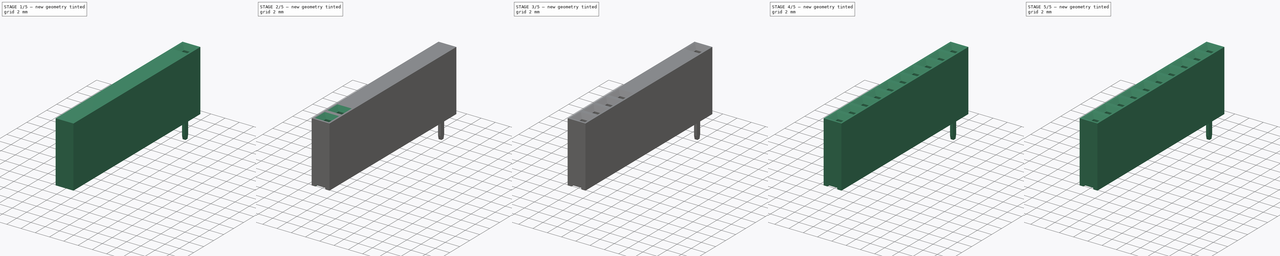
[diagram: build sequence overview — one tinted view per stage of 5, left to right]
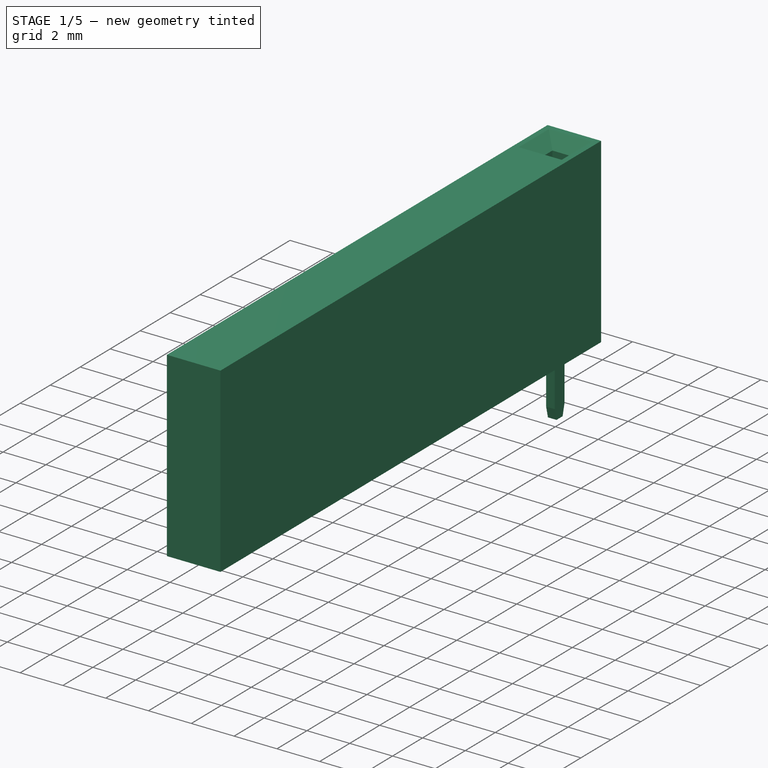
[diagram: stage 1 of 5 — iso view after this stage's code; geometry added in this stage tinted green]
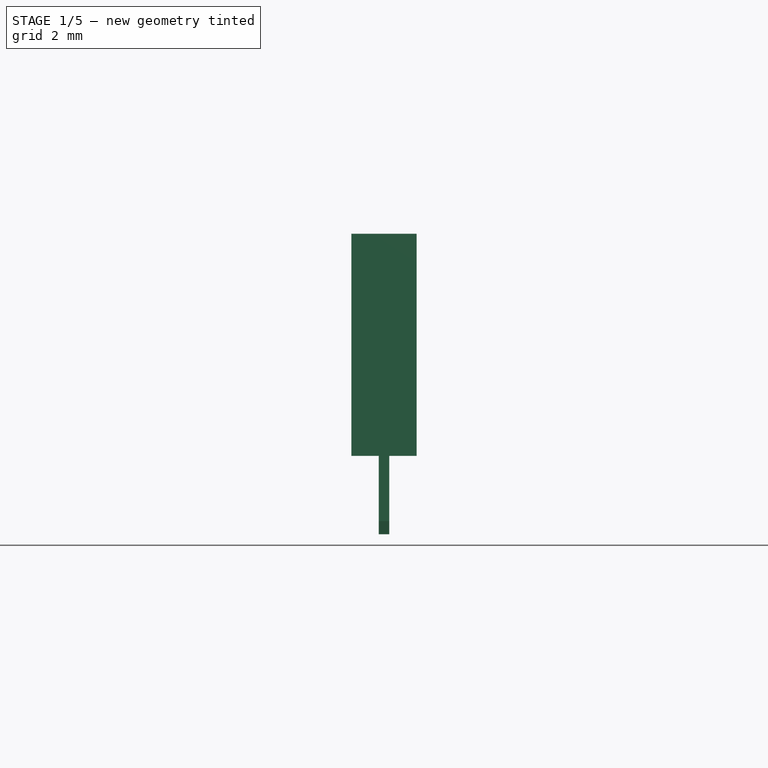
[diagram: stage 1 of 5 — front view after this stage's code; geometry added in this stage tinted green]
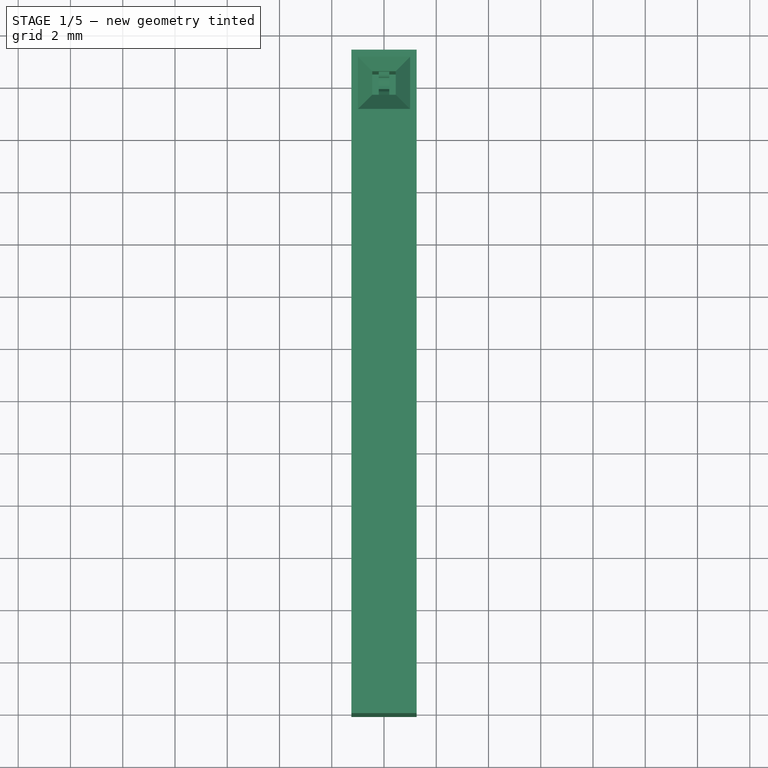
[diagram: stage 1 of 5 — top view after this stage's code; geometry added in this stage tinted green]
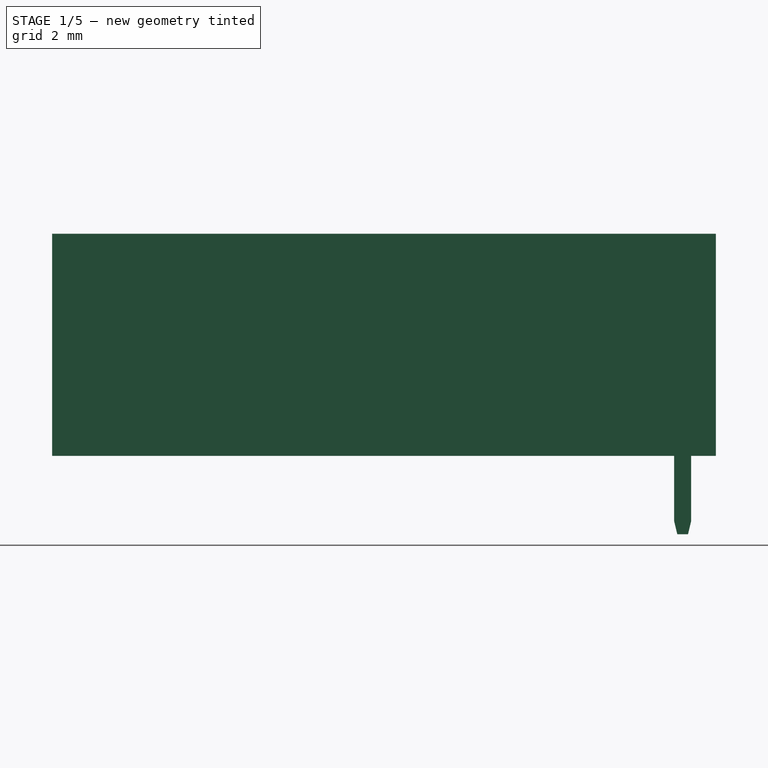
[diagram: stage 1 of 5 — right view after this stage's code; geometry added in this stage tinted green]
FCSTD DOCUMENT  (FreeCAD 0.20R29603 (Git))
Label: Female_Header_1Row_P2.54_H8.5_straight
License: All rights reserved
LicenseURL: http://en.wikipedia.org/wiki/All_rights_reserved
objects: PartDesign::Body×27, PartDesign::FeatureBase×21, Sketcher::SketchObject×18, PartDesign::Pocket×9, PartDesign::Pad×6, PartDesign::SubtractiveLoft×3, PartDesign::Mirrored×3, PartDesign::LinearPattern×3, App::Part×3, Image::ImagePlane×1
note: 108 computed .brp shape members not serialized (recipe doc carries the construction recipe); baked Part::Feature solids carry a one-line shape summary decoded from their .brp

FEATURE [PartDesign::Body] Body002  label="Epoxy_Body"
  Group = -> [Sketch002,Sketch003,Sketch004,Pad,SubtractiveLoft,Sketch008,Pocket,Pocket001,Sketch009,LinearPattern,Pocket006]
  Origin = -> Origin003
  Tip = -> Pocket006
FEATURE [App::Part] Part  label="Female_Header_1x8_P2.54_H8.5_straight"
  Group = -> [Body001,Body002,Body003,Body004,Body005,Body006,Body007,Body008,Body009]
  Origin = -> Origin
FEATURE [Sketcher::SketchObject] Sketch020
  FullyConstrained = true
  MapMode = 5
  Placement = pos=(0,0,0) rot=(0.57735,0.57735,0.57735;2.0944rad)
  Support = -> [YZ_Plane021]
  sketch-geometry (14):
    g0: LineSegment StartX=0 StartY=8.5 StartZ=0 EndX=0 EndY=-8.5 EndZ=0
    g1: ArcOfCircle CenterX=0 CenterY=1.9 CenterZ=0 NormalX=0 NormalY=0 NormalZ=1 AngleXU=0 Radius=0.5 StartAngle=4.71239 EndAngle=6.34078
    g2: LineSegment StartX=0.499171 StartY=1.92878 StartZ=0 EndX=0.219948 EndY=6.77139 EndZ=0
    g3: ArcOfCircle CenterX=0.569367 CenterY=6.79154 CenterZ=0 NormalX=0 NormalY=0 NormalZ=1 AngleXU=0 Radius=0.35 StartAngle=2.26893 EndAngle=3.19919
    g4: LineSegment StartX=0.344392 StartY=7.05965 StartZ=0 EndX=0.75 EndY=7.4 EndZ=0
    g5: LineSegment StartX=0.75 StartY=7.4 StartZ=0 EndX=0.9 EndY=1.9 EndZ=0
    g6: ArcOfCircle CenterX=0.8 CenterY=1.72679 CenterZ=0 NormalX=0 NormalY=0 NormalZ=1 AngleXU=0 Radius=0.2 StartAngle=0 EndAngle=1.0472
    g7: LineSegment StartX=-1e-16 StartY=1.4 StartZ=0 EndX=0 EndY=-3 EndZ=0
    g8: LineSegment StartX=0 StartY=-3 StartZ=0 EndX=0.204961 EndY=-3 EndZ=0
    g9: LineSegment StartX=0.204961 StartY=-3 StartZ=0 EndX=0.325 EndY=-2.5 EndZ=0
    g10: LineSegment StartX=0.325 StartY=-2.5 StartZ=0 EndX=0.325 EndY=0.4 EndZ=0
    g11: LineSegment StartX=0.525 StartY=0.6 StartZ=0 EndX=1 EndY=0.6 EndZ=0
    g12: LineSegment StartX=1 StartY=1.72679 StartZ=0 EndX=1 EndY=0.6 EndZ=0
    g13: ArcOfCircle CenterX=0.525 CenterY=0.4 CenterZ=0 NormalX=0 NormalY=0 NormalZ=1 AngleXU=0 Radius=0.2 StartAngle=1.5708 EndAngle=3.14159
  constraints (40):
    c: PointOnObject(g1,g0)
    c: PointOnObject(g1,g0)
    c: Coincident(g5,g4)
    c: Tangent(g2,g1) = -1.5708
    c: Tangent(g3,g2) = 1.5708
    c: Tangent(g4,g3) = 1.5708
    c: Coincident(g5,g6)
    c: Coincident(g7,g1)
    c: PointOnObject(g7,g0)
    c: Coincident(g8,g7)
    c: Horizontal(g8)
    c: Coincident(g9,g8)
    c: Coincident(g10,g9)
    c: Vertical(g10)
    c: Horizontal(g11)
    c: Coincident(g12,g11)
    c: Vertical(g12)
    c: Tangent(g12,g6) = 1.5708
    c: Tangent(g13,g11) = 1.5708
    c: Tangent(g13,g10) = 1.5708
    c: DistanceX(g7,g9) = 0.325
    c: Angle(g9,g7) = 0.235619
    c: DistanceY(g8,g9) = 0.5
    c: DistanceY(g7) = -3
    c: Radius(g13) = 0.2
    c: Radius(g6) = 0.2
    c: DistanceX(g7,g11) = 1
    c: DistanceY(g8,g4) = 10.4
    c: DistanceY(g7,g7) = 4.4
    c: Radius(g1) = 0.5
    c: DistanceX(g0,g4) = 0.75
    c: DistanceY(g8,g5) = 4.9
    c: DistanceY(g8,g11) = 3.6
    c: Angle(g0,g2) = 0.0575959
    c: Angle(g0,g4) = 2.26893
    c: DistanceX(g5,g11) = 0.1
    c: Radius(g3) = 0.35
    c: DistanceY(g0,g0) = 17
    c: Symmetric(g0,g0,g-1)
    c: PointOnObject(g0,g-2)
FEATURE [PartDesign::Pad] Pad005
  Direction = (1,-2e-16,3e-16)
  Length = 0.4
  Length2 = 10
  Midplane = true
  Placement = pos=(0,0,0) rot=(0.57735,0.57735,0.57735;2.0944rad)
  Profile = -> Sketch020
  ReferenceAxis = -> Sketch020 [N_Axis]
  Type = 0
FEATURE [PartDesign::Mirrored] Mirrored002
  BaseFeature = -> Pad005
  MirrorPlane = -> Sketch020 [V_Axis]
  Originals = -> [Pad005]
  Placement = pos=(0,0,0) rot=(0.57735,0.57735,0.57735;2.0944rad)
  Refine = true
FEATURE [PartDesign::Body] Body024
  BaseFeature = -> Body018
  Group = -> [Clone016]
  Origin = -> Origin027
  Placement = pos=(0,-12.7,0) rot=(0,0,1;0rad)
  Tip = -> Clone016
FEATURE [Sketcher::SketchObject] Sketch021
  FullyConstrained = true
  MapMode = 5
  Support = -> [XY_Plane022]
  sketch-geometry (4):
    g0: LineSegment StartX=-1.25 StartY=1.27 StartZ=0 EndX=1.25 EndY=1.27 EndZ=0
    g1: LineSegment StartX=1.25 StartY=1.27 StartZ=0 EndX=1.25 EndY=-24.13 EndZ=0
    g2: LineSegment StartX=1.25 StartY=-24.13 StartZ=0 EndX=-1.25 EndY=-24.13 EndZ=0
    g3: LineSegment StartX=-1.25 StartY=-24.13 StartZ=0 EndX=-1.25 EndY=1.27 EndZ=0
  constraints (11):
    c: Coincident(g0,g1)
    c: Coincident(g1,g2)
    c: Coincident(g2,g3)
    c: Coincident(g3,g0)
    c: Horizontal(g2)
    c: Vertical(g1)
    c: Vertical(g3)
    c: DistanceY(g3,g3) = 25.4
    c: DistanceX(g0,g0) = 2.5
    c: DistanceY(g-1,g0) = 1.27
    c: Symmetric(g0,g0,g-2)
FEATURE [PartDesign::Pad] Pad004
  Direction = (0,0,1)
  Length = 8.5
  Length2 = 10
  Profile = -> Sketch021
  ReferenceAxis = -> Sketch021 [N_Axis]
  Type = 0
FEATURE [Sketcher::SketchObject] Sketch022
  AttachmentOffset = pos=(0,0,8.5) rot=(0,0,1;0rad)
  FullyConstrained = true
  MapMode = 5
  Placement = pos=(0,0,8.5) rot=(0,0,1;0rad)
  Support = -> [XY_Plane022]
  sketch-geometry (4):
    g0: LineSegment StartX=-1 StartY=1 StartZ=0 EndX=1 EndY=1 EndZ=0
    g1: LineSegment StartX=1 StartY=1 StartZ=0 EndX=1 EndY=-1 EndZ=0
    g2: LineSegment StartX=1 StartY=-1 StartZ=0 EndX=-1 EndY=-1 EndZ=0
    g3: LineSegment StartX=-1 StartY=-1 StartZ=0 EndX=-1 EndY=1 EndZ=0
  constraints (10):
    c: Coincident(g0,g1)
    c: Coincident(g1,g2)
    c: Coincident(g2,g3)
    c: Coincident(g3,g0)
    c: Horizontal(g0)
    c: Vertical(g1)
    c: Symmetric(g0,g2,g-1)
    c: DistanceX(g0,g0) = 2
    c: DistanceY(g3,g3) = 2
    c: Symmetric(g0,g1,g-1)
FEATURE [Sketcher::SketchObject] Sketch023
  AttachmentOffset = pos=(0,0,7.95) rot=(0,0,1;0rad)
  FullyConstrained = true
  MapMode = 5
  Placement = pos=(0,0,7.95) rot=(0,0,1;0rad)
  Support = -> [XY_Plane022]
  sketch-geometry (4):
    g0: LineSegment StartX=-0.45 StartY=0.45 StartZ=0 EndX=0.45 EndY=0.45 EndZ=0
    g1: LineSegment StartX=0.45 StartY=0.45 StartZ=0 EndX=0.45 EndY=-0.45 EndZ=0
    g2: LineSegment StartX=0.45 StartY=-0.45 StartZ=0 EndX=-0.45 EndY=-0.45 EndZ=0
    g3: LineSegment StartX=-0.45 StartY=-0.45 StartZ=0 EndX=-0.45 EndY=0.45 EndZ=0
  constraints (10):
    c: Coincident(g0,g1)
    c: Coincident(g1,g2)
    c: Coincident(g2,g3)
    c: Coincident(g3,g0)
    c: Horizontal(g0)
    c: Vertical(g1)
    c: Symmetric(g0,g2,g-1)
    c: DistanceX(g0,g0) = 0.9
    c: DistanceY(g3,g3) = 0.9
    c: Symmetric(g0,g1,g-1)
FEATURE [Sketcher::SketchObject] Sketch024
  FullyConstrained = true
  MapMode = 5
  Placement = pos=(0,0,0) rot=(0.57735,0.57735,0.57735;2.0944rad)
  Support = -> [YZ_Plane022]
  sketch-geometry (4):
    g0: LineSegment StartX=-1 StartY=7.6 StartZ=0 EndX=-1 EndY=0 EndZ=0
    g1: LineSegment StartX=-1 StartY=0 StartZ=0 EndX=1 EndY=0 EndZ=0
    g2: LineSegment StartX=1 StartY=0 StartZ=0 EndX=1 EndY=7.6 EndZ=0
    g3: LineSegment StartX=1 StartY=7.6 StartZ=0 EndX=-1 EndY=7.6 EndZ=0
  constraints (11):
    c: Coincident(g3,g0)
    c: Coincident(g0,g1)
    c: Coincident(g1,g2)
    c: Horizontal(g1)
    c: Vertical(g0)
    c: Vertical(g2)
    c: Symmetric(g2,g3,g-2)
    c: PointOnObject(g1,g-1)
    c: Coincident(g3,g2)
    c: DistanceY(g0,g0) = 7.6
    c: DistanceX(g3,g3) = 2
FEATURE [Sketcher::SketchObject] Sketch025
  AttachmentOffset = pos=(0,0,-1.27) rot=(0,0,1;0rad)
  FullyConstrained = true
  MapMode = 5
  Placement = pos=(0,1.27,3e-16) rot=(1,0,0;1.5708rad)
  Support = -> [XZ_Plane022]
  sketch-geometry (10):
    g0: LineSegment StartX=-1.25 StartY=0 StartZ=0 EndX=-0.75 EndY=0 EndZ=0
    g1: LineSegment StartX=1.25 StartY=0 StartZ=0 EndX=1.25 EndY=-0.5 EndZ=0
    g2: LineSegment StartX=1.25 StartY=-0.5 StartZ=0 EndX=-1.25 EndY=-0.5 EndZ=0
    g3: LineSegment StartX=-1.25 StartY=-0.5 StartZ=0 EndX=-1.25 EndY=0 EndZ=0
    g4: ArcOfCircle CenterX=-0.75 CenterY=0.1 CenterZ=0 NormalX=0 NormalY=0 NormalZ=1 AngleXU=0 Radius=0.1 StartAngle=4.71239 EndAngle=6.28319
    g5: ArcOfCircle CenterX=0.75 CenterY=0.1 CenterZ=0 NormalX=0 NormalY=0 NormalZ=1 AngleXU=0 Radius=0.1 StartAngle=3.14159 EndAngle=4.71239
    g6: LineSegment StartX=0.75 StartY=0 StartZ=0 EndX=1.25 EndY=0 EndZ=0
    g7: LineSegment StartX=0.65 StartY=0.1 StartZ=0 EndX=0.65 EndY=0.2 EndZ=0
    g8: LineSegment StartX=0.65 StartY=0.2 StartZ=0 EndX=-0.65 EndY=0.2 EndZ=0
    g9: LineSegment StartX=-0.65 StartY=0.2 StartZ=0 EndX=-0.65 EndY=0.1 EndZ=0
  constraints (26):
    c: Coincident(g6,g1)
    c: Coincident(g1,g2)
    c: Coincident(g2,g3)
    c: Coincident(g3,g0)
    c: Horizontal(g0)
    c: Vertical(g1)
    c: Vertical(g3)
    c: PointOnObject(g0,g-1)
    c: Tangent(g6,g5) = -1.5708
    c: Horizontal(g6)
    c: PointOnObject(g1,g-1)
    c: Coincident(g7,g8)
    c: Coincident(g8,g9)
    c: Vertical(g7)
    c: Vertical(g9)
    c: Tangent(g5,g7) = 1.5708
    c: Symmetric(g8,g7,g-2)
    c: Tangent(g9,g4) = 1.5708
    c: Equal(g4,g5)
    c: Radius(g4) = 0.1
    c: DistanceY(g1,g7) = 0.2
    c: DistanceX(g8,g8) = 1.3
    c: DistanceX(g2,g2) = 2.5
    c: Symmetric(g2,g1,g-2)
    c: DistanceY(g1,g7) = 0.7
    c: Tangent(g4,g0) = -1.5708
FEATURE [PartDesign::SubtractiveLoft] SubtractiveLoft002
  BaseFeature = -> Pad004
  Closed = false
  Profile = -> Sketch022
  Ruled = false
  Sections = -> [Sketch023]
FEATURE [PartDesign::Pocket] Pocket007
  BaseFeature = -> SubtractiveLoft002
  Direction = (0,0,-1)
  Length = 7
  Length2 = 5
  Profile = -> Sketch023
  ReferenceAxis = -> Sketch023 [N_Axis]
  Type = 0
FEATURE [PartDesign::Body] Body019  label="Epoxy_Body002"
  Group = -> [Sketch021,Sketch022,Sketch023,Pad004,SubtractiveLoft002,Sketch024,Pocket007,Pocket008,LinearPattern002,Sketch025,Pocket009]
  Origin = -> Origin022
  Tip = -> Pocket009
FEATURE [PartDesign::FeatureBase] Clone024
  BaseFeature = -> Body018
FEATURE [PartDesign::Body] Body034
  BaseFeature = -> Body018
  Group = -> [Clone024]
  Origin = -> Origin056
  Placement = pos=(0,-15.24,0) rot=(0,0,1;0rad)
  Tip = -> Clone024
FEATURE [PartDesign::FeatureBase] Clone025
  BaseFeature = -> Body018
FEATURE [PartDesign::Body] Body035
  BaseFeature = -> Body018
  Group = -> [Clone025]
  Origin = -> Origin057
  Placement = pos=(0,-17.78,0) rot=(0,0,1;0rad)
  Tip = -> Clone025
FEATURE [PartDesign::FeatureBase] Clone026
  BaseFeature = -> Body018
FEATURE [PartDesign::Body] Body036
  BaseFeature = -> Body018
  Group = -> [Clone026]
  Origin = -> Origin058
  Placement = pos=(0,-20.32,0) rot=(0,0,1;0rad)
  Tip = -> Clone026
FEATURE [PartDesign::FeatureBase] Clone027
  BaseFeature = -> Body018
FEATURE [PartDesign::Body] Body037
  BaseFeature = -> Body018
  Group = -> [Clone027]
  Origin = -> Origin059
  Placement = pos=(0,-22.86,0) rot=(0,0,1;0rad)
  Tip = -> Clone027
FEATURE [App::Part] Part002  label="Female_Header_1x10_P2.54_H8.5_straight"
  Group = -> [Body018,Body019,Body020,Body021,Body022,Body023,Body024,Body034,Body035,Body036,Body037]
  Origin = -> Origin020
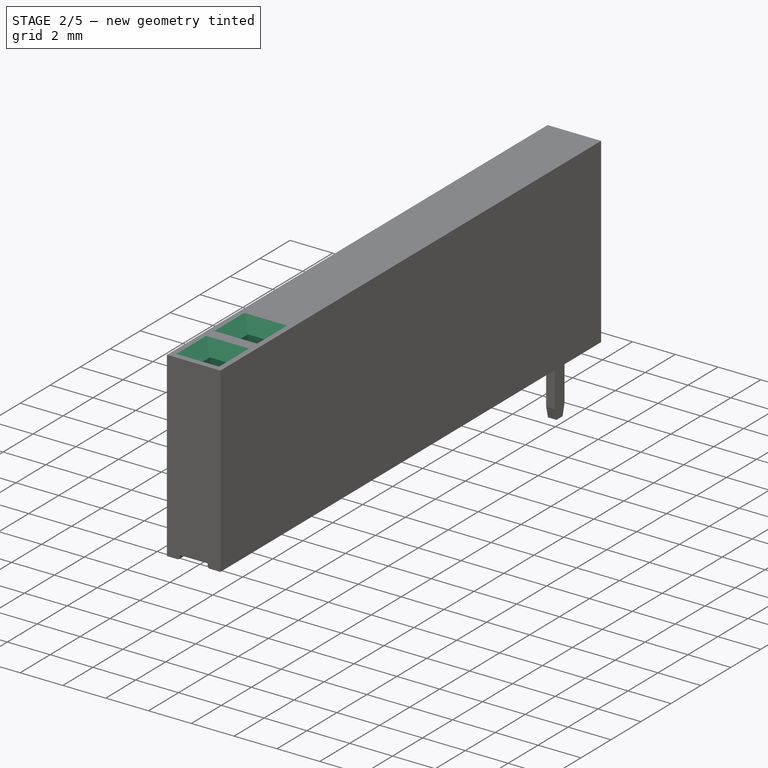
[diagram: stage 2 of 5 — iso view after this stage's code; geometry added in this stage tinted green]
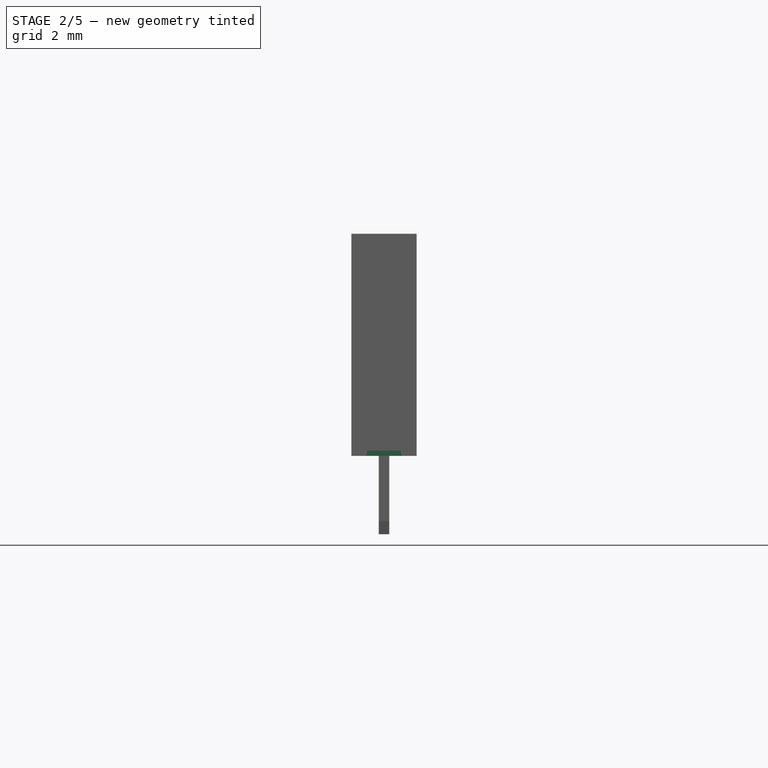
[diagram: stage 2 of 5 — front view after this stage's code; geometry added in this stage tinted green]
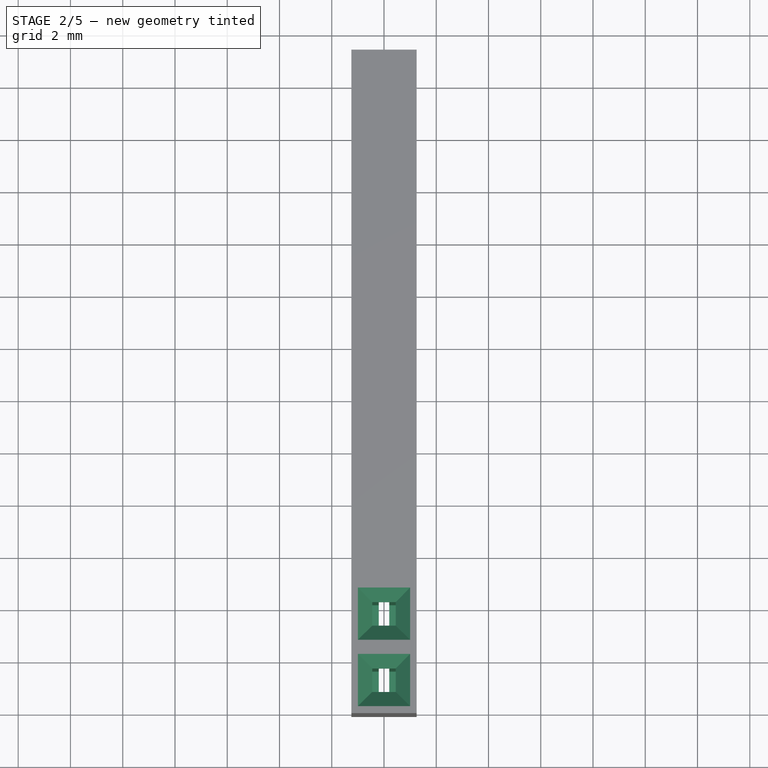
[diagram: stage 2 of 5 — top view after this stage's code; geometry added in this stage tinted green]
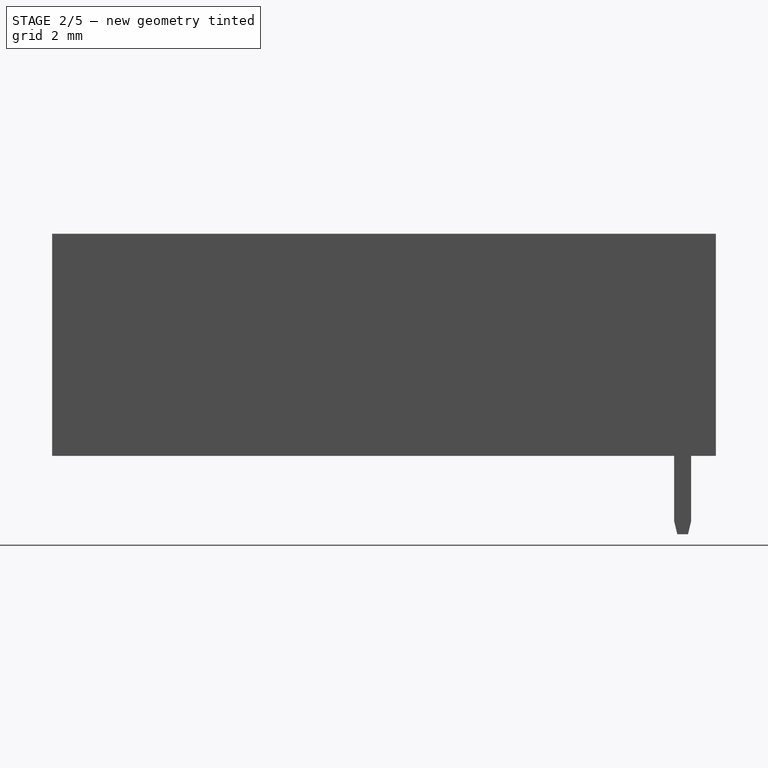
[diagram: stage 2 of 5 — right view after this stage's code; geometry added in this stage tinted green]
FEATURE [Image::ImagePlane] ImagePlane  label="Scondar FH254H850"
  Placement = pos=(0.02,3.34,2.3) rot=(-0.57735,-0.57735,-0.57735;4.18879rad)
  XSize = 101.33
  YSize = 71.6356
FEATURE [Sketcher::SketchObject] Sketch001
  FullyConstrained = true
  MapMode = 5
  Placement = pos=(0,0,0) rot=(0.57735,0.57735,0.57735;2.0944rad)
  Support = -> [YZ_Plane002]
  sketch-geometry (14):
    g0: LineSegment StartX=0 StartY=8.5 StartZ=0 EndX=0 EndY=-8.5 EndZ=0
    g1: ArcOfCircle CenterX=0 CenterY=1.9 CenterZ=0 NormalX=0 NormalY=0 NormalZ=1 AngleXU=0 Radius=0.5 StartAngle=4.71239 EndAngle=6.34078
    g2: LineSegment StartX=0.499171 StartY=1.92878 StartZ=0 EndX=0.219948 EndY=6.77139 EndZ=0
    g3: ArcOfCircle CenterX=0.569367 CenterY=6.79154 CenterZ=0 NormalX=0 NormalY=0 NormalZ=1 AngleXU=0 Radius=0.35 StartAngle=2.26893 EndAngle=3.19919
    g4: LineSegment StartX=0.344392 StartY=7.05965 StartZ=0 EndX=0.75 EndY=7.4 EndZ=0
    g5: LineSegment StartX=0.75 StartY=7.4 StartZ=0 EndX=0.9 EndY=1.9 EndZ=0
    g6: ArcOfCircle CenterX=0.8 CenterY=1.72679 CenterZ=0 NormalX=0 NormalY=0 NormalZ=1 AngleXU=0 Radius=0.2 StartAngle=0 EndAngle=1.0472
    g7: LineSegment StartX=-1e-16 StartY=1.4 StartZ=0 EndX=0 EndY=-3 EndZ=0
    g8: LineSegment StartX=0 StartY=-3 StartZ=0 EndX=0.204961 EndY=-3 EndZ=0
    g9: LineSegment StartX=0.204961 StartY=-3 StartZ=0 EndX=0.325 EndY=-2.5 EndZ=0
    g10: LineSegment StartX=0.325 StartY=-2.5 StartZ=0 EndX=0.325 EndY=0.4 EndZ=0
    g11: LineSegment StartX=0.525 StartY=0.6 StartZ=0 EndX=1 EndY=0.6 EndZ=0
    g12: LineSegment StartX=1 StartY=1.72679 StartZ=0 EndX=1 EndY=0.6 EndZ=0
    g13: ArcOfCircle CenterX=0.525 CenterY=0.4 CenterZ=0 NormalX=0 NormalY=0 NormalZ=1 AngleXU=0 Radius=0.2 StartAngle=1.5708 EndAngle=3.14159
  constraints (40):
    c: PointOnObject(g1,g0)
    c: PointOnObject(g1,g0)
    c: Coincident(g5,g4)
    c: Tangent(g2,g1) = -1.5708
    c: Tangent(g3,g2) = 1.5708
    c: Tangent(g4,g3) = 1.5708
    c: Coincident(g5,g6)
    c: Coincident(g7,g1)
    c: PointOnObject(g7,g0)
    c: Coincident(g8,g7)
    c: Horizontal(g8)
    c: Coincident(g9,g8)
    c: Coincident(g10,g9)
    c: Vertical(g10)
    c: Horizontal(g11)
    c: Coincident(g12,g11)
    c: Vertical(g12)
    c: Tangent(g12,g6) = 1.5708
    c: Tangent(g13,g11) = 1.5708
    c: Tangent(g13,g10) = 1.5708
    c: DistanceX(g7,g9) = 0.325
    c: Angle(g9,g7) = 0.235619
    c: DistanceY(g8,g9) = 0.5
    c: DistanceY(g7) = -3
    c: Radius(g13) = 0.2
    c: Radius(g6) = 0.2
    c: DistanceX(g7,g11) = 1
    c: DistanceY(g8,g4) = 10.4
    c: DistanceY(g7,g7) = 4.4
    c: Radius(g1) = 0.5
    c: DistanceX(g0,g4) = 0.75
    c: DistanceY(g8,g5) = 4.9
    c: DistanceY(g8,g11) = 3.6
    c: Angle(g0,g2) = 0.0575959
    c: Angle(g0,g4) = 2.26893
    c: DistanceX(g5,g11) = 0.1
    c: Radius(g3) = 0.35
    c: DistanceY(g0,g0) = 17
    c: Symmetric(g0,g0,g-1)
    c: PointOnObject(g0,g-2)
FEATURE [Sketcher::SketchObject] Sketch002
  FullyConstrained = true
  MapMode = 5
  Support = -> [XY_Plane003]
  sketch-geometry (4):
    g0: LineSegment StartX=-1.25 StartY=1.27 StartZ=0 EndX=1.25 EndY=1.27 EndZ=0
    g1: LineSegment StartX=1.25 StartY=1.27 StartZ=0 EndX=1.25 EndY=-19.05 EndZ=0
    g2: LineSegment StartX=1.25 StartY=-19.05 StartZ=0 EndX=-1.25 EndY=-19.05 EndZ=0
    g3: LineSegment StartX=-1.25 StartY=-19.05 StartZ=0 EndX=-1.25 EndY=1.27 EndZ=0
  constraints (11):
    c: Coincident(g0,g1)
    c: Coincident(g1,g2)
    c: Coincident(g2,g3)
    c: Coincident(g3,g0)
    c: Horizontal(g2)
    c: Vertical(g1)
    c: Vertical(g3)
    c: DistanceY(g3,g3) = 20.32
    c: DistanceX(g0,g0) = 2.5
    c: Symmetric(g0,g0,g-2)
    c: DistanceY(g-1,g0) = 1.27
FEATURE [Sketcher::SketchObject] Sketch003
  AttachmentOffset = pos=(0,0,8.5) rot=(0,0,1;0rad)
  FullyConstrained = true
  MapMode = 5
  Placement = pos=(0,0,8.5) rot=(0,0,1;0rad)
  Support = -> [XY_Plane003]
  sketch-geometry (4):
    g0: LineSegment StartX=-1 StartY=1 StartZ=0 EndX=1 EndY=1 EndZ=0
    g1: LineSegment StartX=1 StartY=1 StartZ=0 EndX=1 EndY=-1 EndZ=0
    g2: LineSegment StartX=1 StartY=-1 StartZ=0 EndX=-1 EndY=-1 EndZ=0
    g3: LineSegment StartX=-1 StartY=-1 StartZ=0 EndX=-1 EndY=1 EndZ=0
  constraints (10):
    c: Coincident(g0,g1)
    c: Coincident(g1,g2)
    c: Coincident(g2,g3)
    c: Coincident(g3,g0)
    c: Horizontal(g0)
    c: Vertical(g1)
    c: Symmetric(g0,g2,g-1)
    c: DistanceX(g0,g0) = 2
    c: DistanceY(g3,g3) = 2
    c: Symmetric(g0,g1,g-1)
FEATURE [Sketcher::SketchObject] Sketch004
  AttachmentOffset = pos=(0,0,7.95) rot=(0,0,1;0rad)
  FullyConstrained = true
  MapMode = 5
  Placement = pos=(0,0,7.95) rot=(0,0,1;0rad)
  Support = -> [XY_Plane003]
  sketch-geometry (4):
    g0: LineSegment StartX=-0.45 StartY=0.45 StartZ=0 EndX=0.45 EndY=0.45 EndZ=0
    g1: LineSegment StartX=0.45 StartY=0.45 StartZ=0 EndX=0.45 EndY=-0.45 EndZ=0
    g2: LineSegment StartX=0.45 StartY=-0.45 StartZ=0 EndX=-0.45 EndY=-0.45 EndZ=0
    g3: LineSegment StartX=-0.45 StartY=-0.45 StartZ=0 EndX=-0.45 EndY=0.45 EndZ=0
  constraints (10):
    c: Coincident(g0,g1)
    c: Coincident(g1,g2)
    c: Coincident(g2,g3)
    c: Coincident(g3,g0)
    c: Horizontal(g0)
    c: Vertical(g1)
    c: Symmetric(g0,g2,g-1)
    c: DistanceX(g0,g0) = 0.9
    c: DistanceY(g3,g3) = 0.9
    c: Symmetric(g0,g1,g-1)
FEATURE [PartDesign::Pad] Pad
  Direction = (0,0,1)
  Length = 8.5
  Length2 = 10
  Profile = -> Sketch002
  ReferenceAxis = -> Sketch002 [N_Axis]
  Type = 0
FEATURE [PartDesign::Body] Body018  label="Pin_One002"
  Group = -> [Sketch020,Pad005,Mirrored002]
  Origin = -> Origin021
  Tip = -> Mirrored002
FEATURE [PartDesign::FeatureBase] Clone012
  BaseFeature = -> Body018
FEATURE [PartDesign::Body] Body020
  BaseFeature = -> Body018
  Group = -> [Clone012]
  Origin = -> Origin023
  Placement = pos=(0,-2.54,0) rot=(0,0,1;0rad)
  Tip = -> Clone012
FEATURE [PartDesign::FeatureBase] Clone013
  BaseFeature = -> Body018
FEATURE [PartDesign::Body] Body021
  BaseFeature = -> Body018
  Group = -> [Clone013]
  Origin = -> Origin024
  Placement = pos=(0,-5.08,0) rot=(0,0,1;0rad)
  Tip = -> Clone013
FEATURE [PartDesign::FeatureBase] Clone014
  BaseFeature = -> Body018
FEATURE [PartDesign::Body] Body022
  BaseFeature = -> Body018
  Group = -> [Clone014]
  Origin = -> Origin025
  Placement = pos=(0,-7.62,0) rot=(0,0,1;0rad)
  Tip = -> Clone014
FEATURE [PartDesign::FeatureBase] Clone015
  BaseFeature = -> Body018
FEATURE [PartDesign::Body] Body023
  BaseFeature = -> Body018
  Group = -> [Clone015]
  Origin = -> Origin026
  Placement = pos=(0,-10.16,0) rot=(0,0,1;0rad)
  Tip = -> Clone015
FEATURE [PartDesign::FeatureBase] Clone016
  BaseFeature = -> Body018
FEATURE [PartDesign::Pocket] Pocket008
  BaseFeature = -> Pocket007
  Direction = (-1,2e-16,-3e-16)
  Length = 0.4
  Length2 = 5
  Midplane = true
  Profile = -> Sketch024
  ReferenceAxis = -> Sketch024 [N_Axis]
  Type = 0
FEATURE [PartDesign::LinearPattern] LinearPattern002
  BaseFeature = -> Pocket008
  Direction = -> Sketch022 [V_Axis]
  Length = 22.86
  Occurrences = 10
  Originals = -> [SubtractiveLoft002,Pocket007,Pocket008]
  Reversed = true
FEATURE [PartDesign::Pocket] Pocket009
  BaseFeature = -> LinearPattern002
  Direction = (0,1,2e-16)
  Length = 5
  Length2 = 5
  Profile = -> Sketch025
  ReferenceAxis = -> Sketch025 [N_Axis]
  Reversed = true
  Type = 1
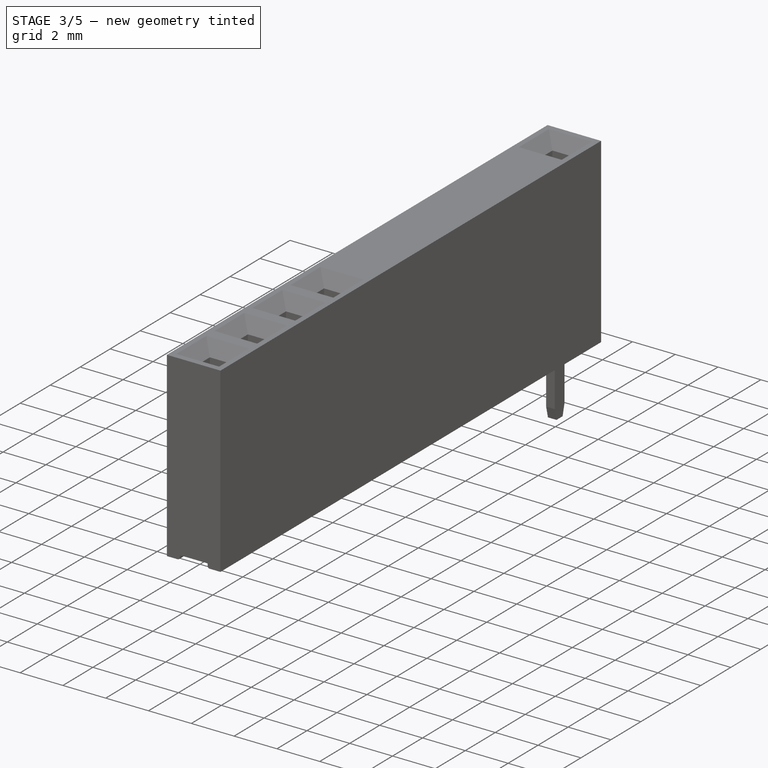
[diagram: stage 3 of 5 — iso view after this stage's code; geometry added in this stage tinted green]
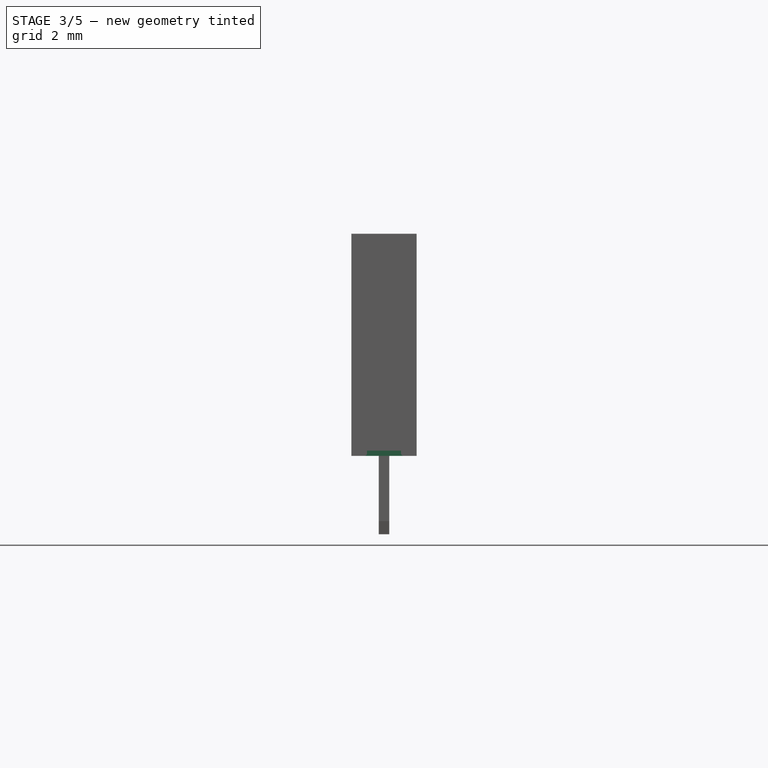
[diagram: stage 3 of 5 — front view after this stage's code; geometry added in this stage tinted green]
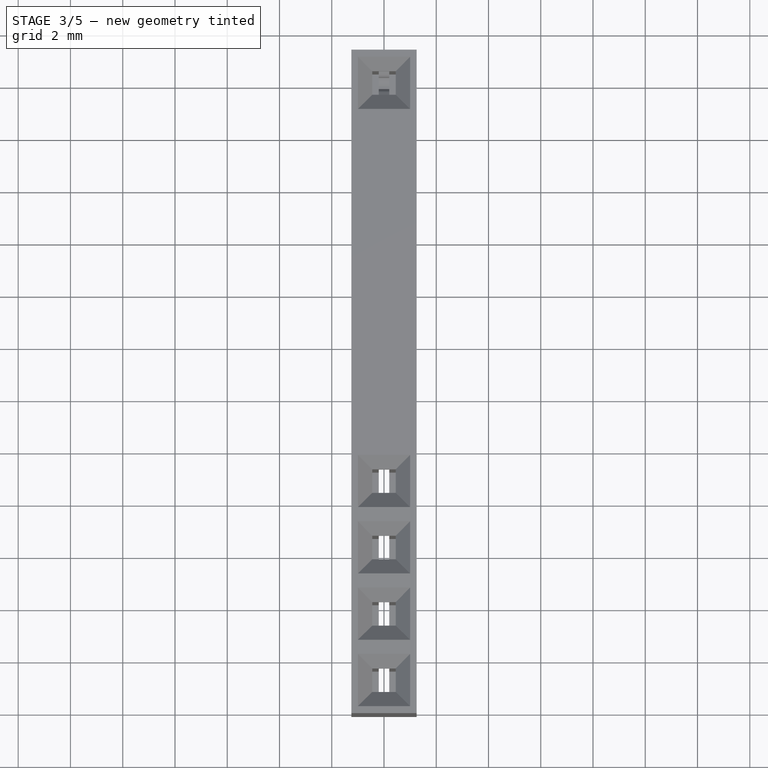
[diagram: stage 3 of 5 — top view after this stage's code; geometry added in this stage tinted green]
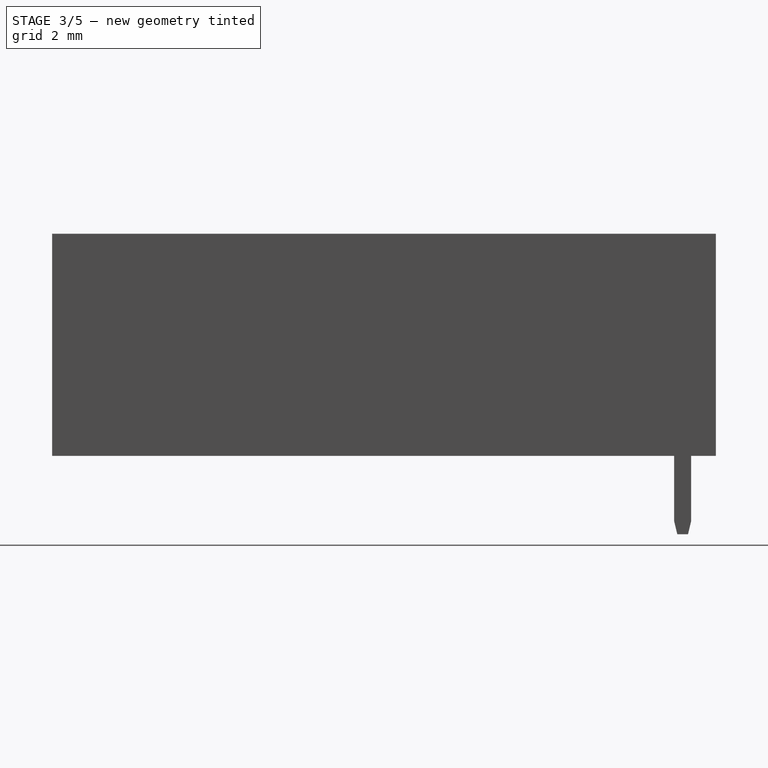
[diagram: stage 3 of 5 — right view after this stage's code; geometry added in this stage tinted green]
FEATURE [PartDesign::SubtractiveLoft] SubtractiveLoft
  BaseFeature = -> Pad
  Closed = false
  Profile = -> Sketch003
  Ruled = false
  Sections = -> [Sketch004]
FEATURE [PartDesign::Body] Body001  label="Pin_One"
  Group = -> [Sketch001,Pad001,Mirrored]
  Origin = -> Origin002
  Tip = -> Mirrored
FEATURE [Sketcher::SketchObject] Sketch008
  FullyConstrained = true
  MapMode = 5
  Placement = pos=(0,0,0) rot=(0.57735,0.57735,0.57735;2.0944rad)
  Support = -> [YZ_Plane003]
  sketch-geometry (4):
    g0: LineSegment StartX=-1 StartY=7.6 StartZ=0 EndX=-1 EndY=0 EndZ=0
    g1: LineSegment StartX=-1 StartY=0 StartZ=0 EndX=1 EndY=0 EndZ=0
    g2: LineSegment StartX=1 StartY=0 StartZ=0 EndX=1 EndY=7.6 EndZ=0
    g3: LineSegment StartX=1 StartY=7.6 StartZ=0 EndX=-1 EndY=7.6 EndZ=0
  constraints (11):
    c: Coincident(g3,g0)
    c: Coincident(g0,g1)
    c: Coincident(g1,g2)
    c: Horizontal(g1)
    c: Vertical(g0)
    c: Vertical(g2)
    c: Symmetric(g2,g3,g-2)
    c: PointOnObject(g1,g-1)
    c: Coincident(g3,g2)
    c: DistanceY(g0,g0) = 7.6
    c: DistanceX(g3,g3) = 2
FEATURE [PartDesign::Pocket] Pocket
  BaseFeature = -> SubtractiveLoft
  Direction = (0,0,-1)
  Length = 7
  Length2 = 5
  Profile = -> Sketch004
  ReferenceAxis = -> Sketch004 [N_Axis]
  Type = 0
FEATURE [PartDesign::Pocket] Pocket001
  BaseFeature = -> Pocket
  Direction = (-1,2e-16,-3e-16)
  Length = 0.4
  Length2 = 5
  Midplane = true
  Profile = -> Sketch008
  ReferenceAxis = -> Sketch008 [N_Axis]
  Type = 0
FEATURE [PartDesign::Body] Body017
  BaseFeature = -> Body011
  Group = -> [Clone011]
  Origin = -> Origin019
  Placement = pos=(0,-12.7,0) rot=(0,0,1;0rad)
  Tip = -> Clone011
FEATURE [Sketcher::SketchObject] Sketch012
  FullyConstrained = true
  MapMode = 5
  Support = -> [XY_Plane014]
  sketch-geometry (4):
    g0: LineSegment StartX=-1.25 StartY=1.27 StartZ=0 EndX=1.25 EndY=1.27 EndZ=0
    g1: LineSegment StartX=1.25 StartY=1.27 StartZ=0 EndX=1.25 EndY=-13.97 EndZ=0
    g2: LineSegment StartX=1.25 StartY=-13.97 StartZ=0 EndX=-1.25 EndY=-13.97 EndZ=0
    g3: LineSegment StartX=-1.25 StartY=-13.97 StartZ=0 EndX=-1.25 EndY=1.27 EndZ=0
  constraints (11):
    c: Coincident(g0,g1)
    c: Coincident(g1,g2)
    c: Coincident(g2,g3)
    c: Coincident(g3,g0)
    c: Horizontal(g2)
    c: Vertical(g1)
    c: Vertical(g3)
    c: DistanceY(g3,g3) = 15.24
    c: DistanceX(g0,g0) = 2.5
    c: DistanceY(g-1,g0) = 1.27
    c: Symmetric(g0,g0,g-2)
FEATURE [PartDesign::Pad] Pad002
  Direction = (0,0,1)
  Length = 8.5
  Length2 = 10
  Profile = -> Sketch012
  ReferenceAxis = -> Sketch012 [N_Axis]
  Type = 0
FEATURE [Sketcher::SketchObject] Sketch013
  AttachmentOffset = pos=(0,0,8.5) rot=(0,0,1;0rad)
  FullyConstrained = true
  MapMode = 5
  Placement = pos=(0,0,8.5) rot=(0,0,1;0rad)
  Support = -> [XY_Plane014]
  sketch-geometry (4):
    g0: LineSegment StartX=-1 StartY=1 StartZ=0 EndX=1 EndY=1 EndZ=0
    g1: LineSegment StartX=1 StartY=1 StartZ=0 EndX=1 EndY=-1 EndZ=0
    g2: LineSegment StartX=1 StartY=-1 StartZ=0 EndX=-1 EndY=-1 EndZ=0
    g3: LineSegment StartX=-1 StartY=-1 StartZ=0 EndX=-1 EndY=1 EndZ=0
  constraints (10):
    c: Coincident(g0,g1)
    c: Coincident(g1,g2)
    c: Coincident(g2,g3)
    c: Coincident(g3,g0)
    c: Horizontal(g0)
    c: Vertical(g1)
    c: Symmetric(g0,g2,g-1)
    c: DistanceX(g0,g0) = 2
    c: DistanceY(g3,g3) = 2
    c: Symmetric(g0,g1,g-1)
FEATURE [Sketcher::SketchObject] Sketch014
  AttachmentOffset = pos=(0,0,7.95) rot=(0,0,1;0rad)
  FullyConstrained = true
  MapMode = 5
  Placement = pos=(0,0,7.95) rot=(0,0,1;0rad)
  Support = -> [XY_Plane014]
  sketch-geometry (4):
    g0: LineSegment StartX=-0.45 StartY=0.45 StartZ=0 EndX=0.45 EndY=0.45 EndZ=0
    g1: LineSegment StartX=0.45 StartY=0.45 StartZ=0 EndX=0.45 EndY=-0.45 EndZ=0
    g2: LineSegment StartX=0.45 StartY=-0.45 StartZ=0 EndX=-0.45 EndY=-0.45 EndZ=0
    g3: LineSegment StartX=-0.45 StartY=-0.45 StartZ=0 EndX=-0.45 EndY=0.45 EndZ=0
  constraints (10):
    c: Coincident(g0,g1)
    c: Coincident(g1,g2)
    c: Coincident(g2,g3)
    c: Coincident(g3,g0)
    c: Horizontal(g0)
    c: Vertical(g1)
    c: Symmetric(g0,g2,g-1)
    c: DistanceX(g0,g0) = 0.9
    c: DistanceY(g3,g3) = 0.9
    c: Symmetric(g0,g1,g-1)
FEATURE [Sketcher::SketchObject] Sketch018
  FullyConstrained = true
  MapMode = 5
  Placement = pos=(0,0,0) rot=(0.57735,0.57735,0.57735;2.0944rad)
  Support = -> [YZ_Plane014]
  sketch-geometry (4):
    g0: LineSegment StartX=-1 StartY=7.6 StartZ=0 EndX=-1 EndY=0 EndZ=0
    g1: LineSegment StartX=-1 StartY=0 StartZ=0 EndX=1 EndY=0 EndZ=0
    g2: LineSegment StartX=1 StartY=0 StartZ=0 EndX=1 EndY=7.6 EndZ=0
    g3: LineSegment StartX=1 StartY=7.6 StartZ=0 EndX=-1 EndY=7.6 EndZ=0
  constraints (11):
    c: Coincident(g3,g0)
    c: Coincident(g0,g1)
    c: Coincident(g1,g2)
    c: Horizontal(g1)
    c: Vertical(g0)
    c: Vertical(g2)
    c: Symmetric(g2,g3,g-2)
    c: PointOnObject(g1,g-1)
    c: Coincident(g3,g2)
    c: DistanceY(g0,g0) = 7.6
    c: DistanceX(g3,g3) = 2
FEATURE [Sketcher::SketchObject] Sketch019
  AttachmentOffset = pos=(0,0,-1.27) rot=(0,0,1;0rad)
  FullyConstrained = true
  MapMode = 5
  Placement = pos=(0,1.27,3e-16) rot=(1,0,0;1.5708rad)
  Support = -> [XZ_Plane014]
  sketch-geometry (10):
    g0: LineSegment StartX=-1.25 StartY=0 StartZ=0 EndX=-0.75 EndY=0 EndZ=0
    g1: LineSegment StartX=1.25 StartY=0 StartZ=0 EndX=1.25 EndY=-0.5 EndZ=0
    g2: LineSegment StartX=1.25 StartY=-0.5 StartZ=0 EndX=-1.25 EndY=-0.5 EndZ=0
    g3: LineSegment StartX=-1.25 StartY=-0.5 StartZ=0 EndX=-1.25 EndY=0 EndZ=0
    g4: ArcOfCircle CenterX=-0.75 CenterY=0.1 CenterZ=0 NormalX=0 NormalY=0 NormalZ=1 AngleXU=0 Radius=0.1 StartAngle=4.71239 EndAngle=6.28319
    g5: ArcOfCircle CenterX=0.75 CenterY=0.1 CenterZ=0 NormalX=0 NormalY=0 NormalZ=1 AngleXU=0 Radius=0.1 StartAngle=3.14159 EndAngle=4.71239
    g6: LineSegment StartX=0.75 StartY=0 StartZ=0 EndX=1.25 EndY=0 EndZ=0
    g7: LineSegment StartX=0.65 StartY=0.1 StartZ=0 EndX=0.65 EndY=0.2 EndZ=0
    g8: LineSegment StartX=0.65 StartY=0.2 StartZ=0 EndX=-0.65 EndY=0.2 EndZ=0
    g9: LineSegment StartX=-0.65 StartY=0.2 StartZ=0 EndX=-0.65 EndY=0.1 EndZ=0
  constraints (26):
    c: Coincident(g6,g1)
    c: Coincident(g1,g2)
    c: Coincident(g2,g3)
    c: Coincident(g3,g0)
    c: Horizontal(g0)
    c: Vertical(g1)
    c: Vertical(g3)
    c: PointOnObject(g0,g-1)
    c: Tangent(g6,g5) = -1.5708
    c: Horizontal(g6)
    c: PointOnObject(g1,g-1)
    c: Coincident(g7,g8)
    c: Coincident(g8,g9)
    c: Vertical(g7)
    c: Vertical(g9)
    c: Tangent(g5,g7) = 1.5708
    c: Symmetric(g8,g7,g-2)
    c: Tangent(g9,g4) = 1.5708
    c: Equal(g4,g5)
    c: Radius(g4) = 0.1
    c: DistanceY(g1,g7) = 0.2
    c: DistanceX(g8,g8) = 1.3
    c: DistanceX(g2,g2) = 2.5
    c: Symmetric(g2,g1,g-2)
    c: DistanceY(g1,g7) = 0.7
    c: Tangent(g4,g0) = -1.5708
FEATURE [PartDesign::SubtractiveLoft] SubtractiveLoft001
  BaseFeature = -> Pad002
  Closed = false
  Profile = -> Sketch013
  Ruled = false
  Sections = -> [Sketch014]
FEATURE [PartDesign::Pocket] Pocket003
  BaseFeature = -> SubtractiveLoft001
  Direction = (0,0,-1)
  Length = 7
  Length2 = 5
  Profile = -> Sketch014
  ReferenceAxis = -> Sketch014 [N_Axis]
  Type = 0
FEATURE [PartDesign::Pocket] Pocket004
  BaseFeature = -> Pocket003
  Direction = (-1,2e-16,-3e-16)
  Length = 0.4
  Length2 = 5
  Midplane = true
  Profile = -> Sketch018
  ReferenceAxis = -> Sketch018 [N_Axis]
  Type = 0
FEATURE [PartDesign::Body] Body012  label="Epoxy_Body001"
  Group = -> [Sketch012,Sketch013,Sketch014,Pad002,SubtractiveLoft001,Sketch018,Pocket003,Pocket004,LinearPattern001,Sketch019,Pocket005]
  Origin = -> Origin014
  Tip = -> Pocket005
FEATURE [App::Part] Part001  label="Female_Header_1x6_P2.54_H8.5_straight"
  Group = -> [Body011,Body012,Body013,Body014,Body015,Body016,Body017]
  Origin = -> Origin011
FEATURE [PartDesign::LinearPattern] LinearPattern
  BaseFeature = -> Pocket001
  Direction = -> Sketch003 [V_Axis]
  Length = 17.78
  Occurrences = 8
  Originals = -> [SubtractiveLoft,Pocket,Pocket001]
  Reversed = true
FEATURE [PartDesign::Pocket] Pocket006
  BaseFeature = -> LinearPattern
  Direction = (0,1,2e-16)
  Length = 5
  Length2 = 5
  Profile = -> Sketch009
  ReferenceAxis = -> Sketch009 [N_Axis]
  Reversed = true
  Type = 1
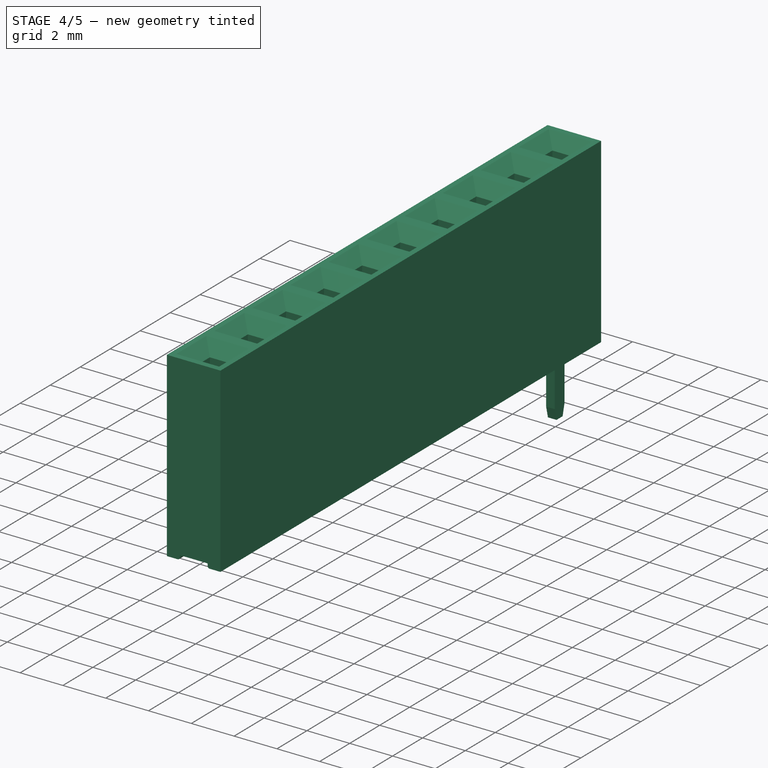
[diagram: stage 4 of 5 — iso view after this stage's code; geometry added in this stage tinted green]
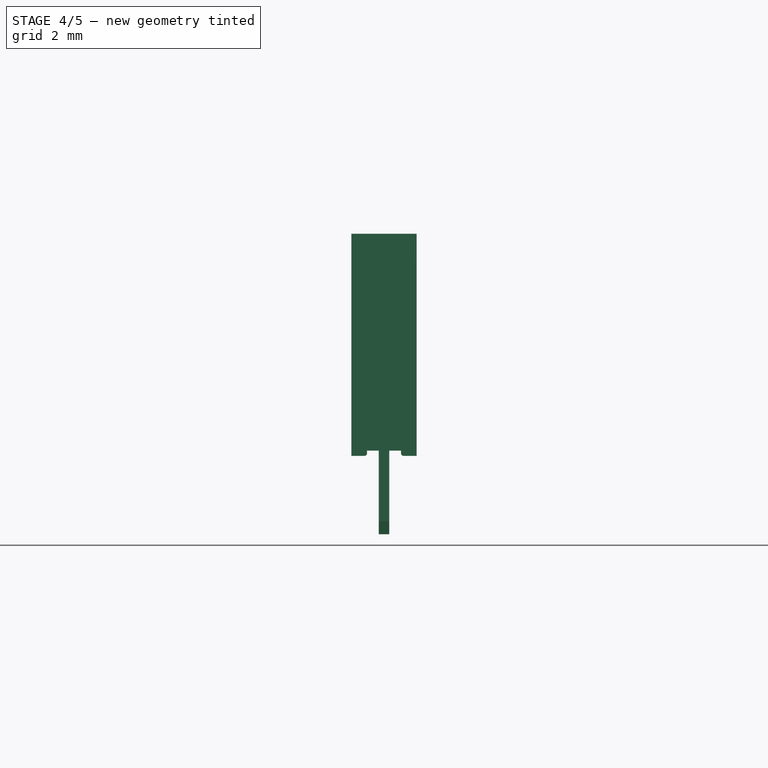
[diagram: stage 4 of 5 — front view after this stage's code; geometry added in this stage tinted green]
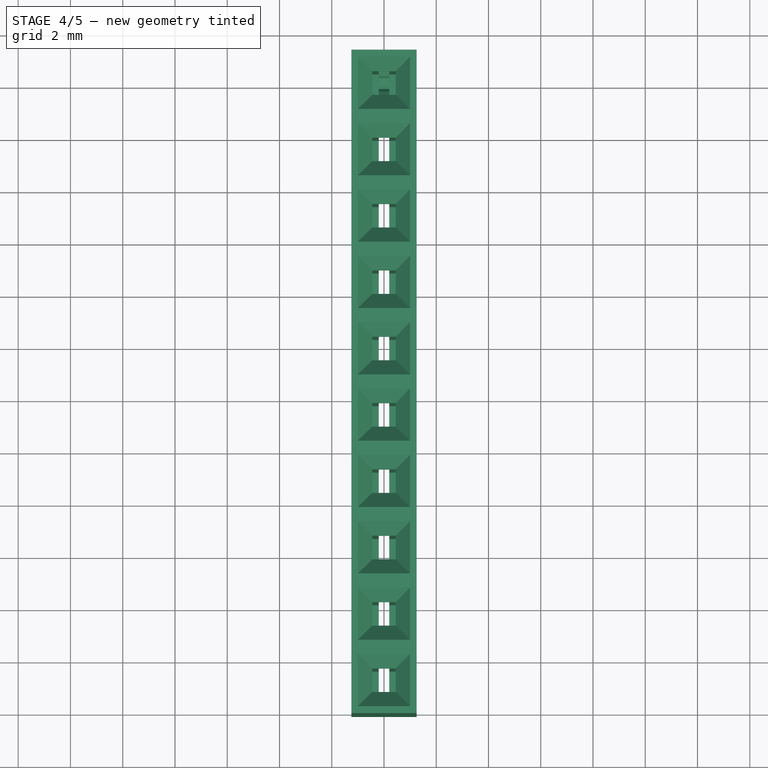
[diagram: stage 4 of 5 — top view after this stage's code; geometry added in this stage tinted green]
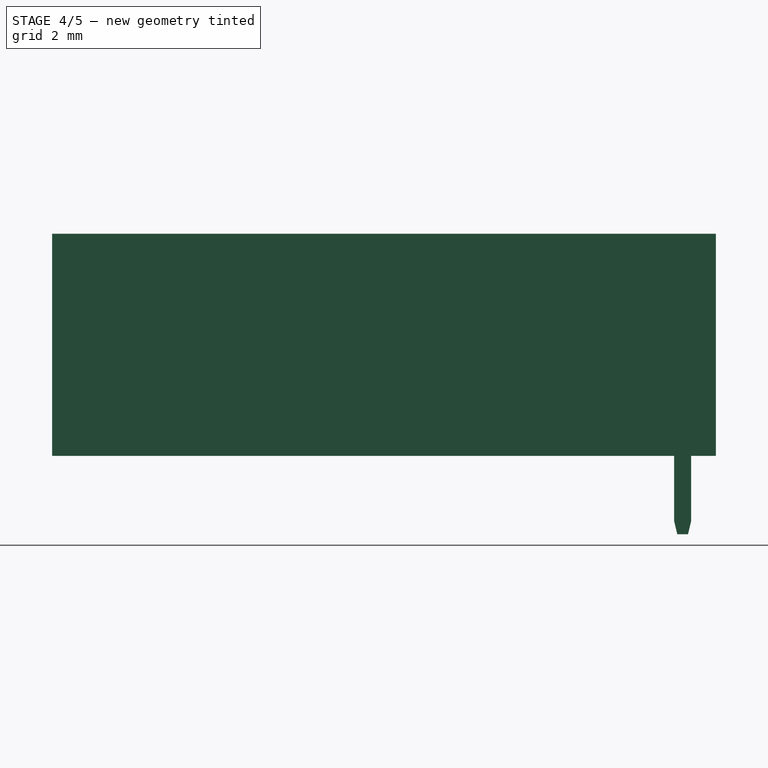
[diagram: stage 4 of 5 — right view after this stage's code; geometry added in this stage tinted green]
FEATURE [PartDesign::Body] Body009
  BaseFeature = -> Body001
  Group = -> [Clone006]
  Origin = -> Origin010
  Placement = pos=(0,-17.78,0) rot=(0,0,1;0rad)
  Tip = -> Clone006
FEATURE [Sketcher::SketchObject] Sketch011
  FullyConstrained = true
  MapMode = 5
  Placement = pos=(0,0,0) rot=(0.57735,0.57735,0.57735;2.0944rad)
  Support = -> [YZ_Plane013]
  sketch-geometry (14):
    g0: LineSegment StartX=0 StartY=8.5 StartZ=0 EndX=0 EndY=-8.5 EndZ=0
    g1: ArcOfCircle CenterX=0 CenterY=1.9 CenterZ=0 NormalX=0 NormalY=0 NormalZ=1 AngleXU=0 Radius=0.5 StartAngle=4.71239 EndAngle=6.34078
    g2: LineSegment StartX=0.499171 StartY=1.92878 StartZ=0 EndX=0.219948 EndY=6.77139 EndZ=0
    g3: ArcOfCircle CenterX=0.569367 CenterY=6.79154 CenterZ=0 NormalX=0 NormalY=0 NormalZ=1 AngleXU=0 Radius=0.35 StartAngle=2.26893 EndAngle=3.19919
    g4: LineSegment StartX=0.344392 StartY=7.05965 StartZ=0 EndX=0.75 EndY=7.4 EndZ=0
    g5: LineSegment StartX=0.75 StartY=7.4 StartZ=0 EndX=0.9 EndY=1.9 EndZ=0
    g6: ArcOfCircle CenterX=0.8 CenterY=1.72679 CenterZ=0 NormalX=0 NormalY=0 NormalZ=1 AngleXU=0 Radius=0.2 StartAngle=0 EndAngle=1.0472
    g7: LineSegment StartX=-1e-16 StartY=1.4 StartZ=0 EndX=0 EndY=-3 EndZ=0
    g8: LineSegment StartX=0 StartY=-3 StartZ=0 EndX=0.204961 EndY=-3 EndZ=0
    g9: LineSegment StartX=0.204961 StartY=-3 StartZ=0 EndX=0.325 EndY=-2.5 EndZ=0
    g10: LineSegment StartX=0.325 StartY=-2.5 StartZ=0 EndX=0.325 EndY=0.4 EndZ=0
    g11: LineSegment StartX=0.525 StartY=0.6 StartZ=0 EndX=1 EndY=0.6 EndZ=0
    g12: LineSegment StartX=1 StartY=1.72679 StartZ=0 EndX=1 EndY=0.6 EndZ=0
    g13: ArcOfCircle CenterX=0.525 CenterY=0.4 CenterZ=0 NormalX=0 NormalY=0 NormalZ=1 AngleXU=0 Radius=0.2 StartAngle=1.5708 EndAngle=3.14159
  constraints (40):
    c: PointOnObject(g1,g0)
    c: PointOnObject(g1,g0)
    c: Coincident(g5,g4)
    c: Tangent(g2,g1) = -1.5708
    c: Tangent(g3,g2) = 1.5708
    c: Tangent(g4,g3) = 1.5708
    c: Coincident(g5,g6)
    c: Coincident(g7,g1)
    c: PointOnObject(g7,g0)
    c: Coincident(g8,g7)
    c: Horizontal(g8)
    c: Coincident(g9,g8)
    c: Coincident(g10,g9)
    c: Vertical(g10)
    c: Horizontal(g11)
    c: Coincident(g12,g11)
    c: Vertical(g12)
    c: Tangent(g12,g6) = 1.5708
    c: Tangent(g13,g11) = 1.5708
    c: Tangent(g13,g10) = 1.5708
    c: DistanceX(g7,g9) = 0.325
    c: Angle(g9,g7) = 0.235619
    c: DistanceY(g8,g9) = 0.5
    c: DistanceY(g7) = -3
    c: Radius(g13) = 0.2
    c: Radius(g6) = 0.2
    c: DistanceX(g7,g11) = 1
    c: DistanceY(g8,g4) = 10.4
    c: DistanceY(g7,g7) = 4.4
    c: Radius(g1) = 0.5
    c: DistanceX(g0,g4) = 0.75
    c: DistanceY(g8,g5) = 4.9
    c: DistanceY(g8,g11) = 3.6
    c: Angle(g0,g2) = 0.0575959
    c: Angle(g0,g4) = 2.26893
    c: DistanceX(g5,g11) = 0.1
    c: Radius(g3) = 0.35
    c: DistanceY(g0,g0) = 17
    c: Symmetric(g0,g0,g-1)
    c: PointOnObject(g0,g-2)
FEATURE [PartDesign::Pad] Pad003
  Direction = (1,-2e-16,3e-16)
  Length = 0.4
  Length2 = 10
  Midplane = true
  Placement = pos=(0,0,0) rot=(0.57735,0.57735,0.57735;2.0944rad)
  Profile = -> Sketch011
  ReferenceAxis = -> Sketch011 [N_Axis]
  Type = 0
FEATURE [PartDesign::Mirrored] Mirrored001
  BaseFeature = -> Pad003
  MirrorPlane = -> Sketch011 [V_Axis]
  Originals = -> [Pad003]
  Placement = pos=(0,0,0) rot=(0.57735,0.57735,0.57735;2.0944rad)
  Refine = true
FEATURE [PartDesign::Body] Body011  label="Pin_One001"
  Group = -> [Sketch011,Pad003,Mirrored001]
  Origin = -> Origin013
  Tip = -> Mirrored001
FEATURE [PartDesign::FeatureBase] Clone007
  BaseFeature = -> Body011
FEATURE [PartDesign::Body] Body013
  BaseFeature = -> Body011
  Group = -> [Clone007]
  Origin = -> Origin015
  Placement = pos=(0,-2.54,0) rot=(0,0,1;0rad)
  Tip = -> Clone007
FEATURE [PartDesign::FeatureBase] Clone008
  BaseFeature = -> Body011
FEATURE [PartDesign::Body] Body014
  BaseFeature = -> Body011
  Group = -> [Clone008]
  Origin = -> Origin016
  Placement = pos=(0,-5.08,0) rot=(0,0,1;0rad)
  Tip = -> Clone008
FEATURE [PartDesign::FeatureBase] Clone009
  BaseFeature = -> Body011
FEATURE [PartDesign::Body] Body015
  BaseFeature = -> Body011
  Group = -> [Clone009]
  Origin = -> Origin017
  Placement = pos=(0,-7.62,0) rot=(0,0,1;0rad)
  Tip = -> Clone009
FEATURE [PartDesign::FeatureBase] Clone010
  BaseFeature = -> Body011
FEATURE [PartDesign::Body] Body016
  BaseFeature = -> Body011
  Group = -> [Clone010]
  Origin = -> Origin018
  Placement = pos=(0,-10.16,0) rot=(0,0,1;0rad)
  Tip = -> Clone010
FEATURE [PartDesign::FeatureBase] Clone011
  BaseFeature = -> Body011
FEATURE [PartDesign::LinearPattern] LinearPattern001
  BaseFeature = -> Pocket004
  Direction = -> Sketch013 [V_Axis]
  Length = 15.24
  Occurrences = 7
  Originals = -> [SubtractiveLoft001,Pocket003,Pocket004]
  Reversed = true
FEATURE [PartDesign::Pocket] Pocket005
  BaseFeature = -> LinearPattern001
  Direction = (0,1,2e-16)
  Length = 5
  Length2 = 5
  Profile = -> Sketch019
  ReferenceAxis = -> Sketch019 [N_Axis]
  Reversed = true
  Type = 1
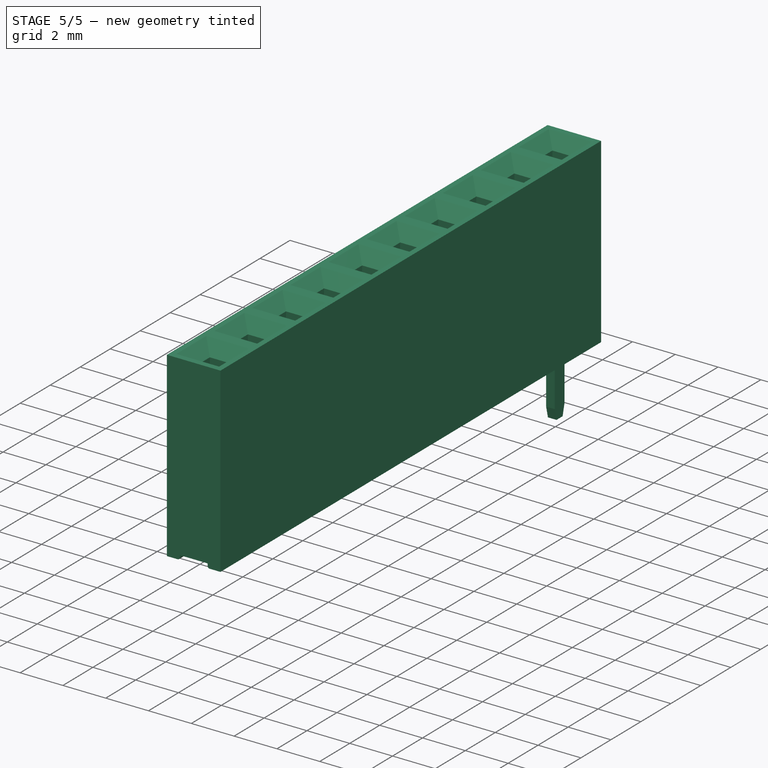
[diagram: stage 5 of 5 — iso view after this stage's code; geometry added in this stage tinted green]
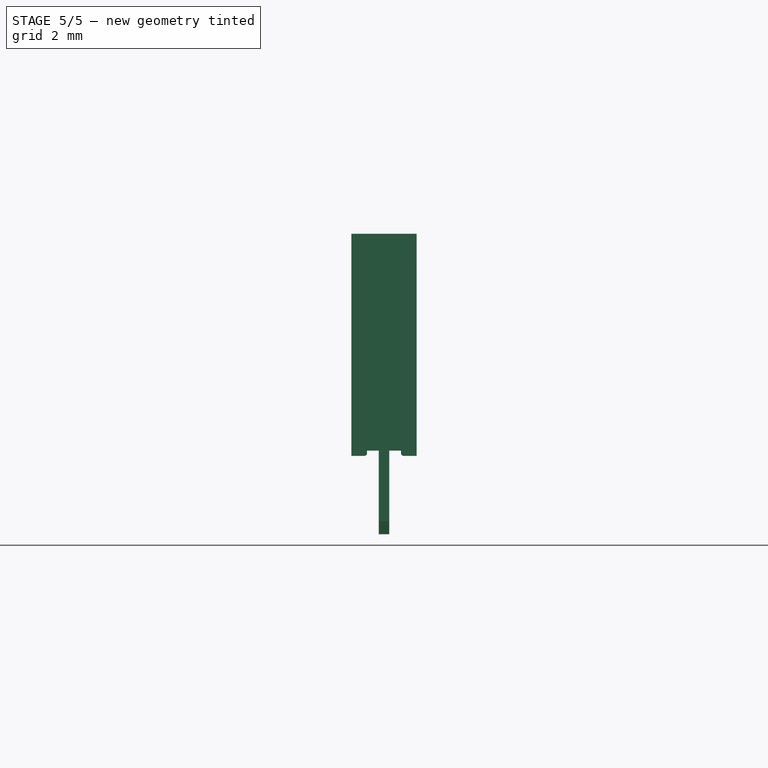
[diagram: stage 5 of 5 — front view after this stage's code; geometry added in this stage tinted green]
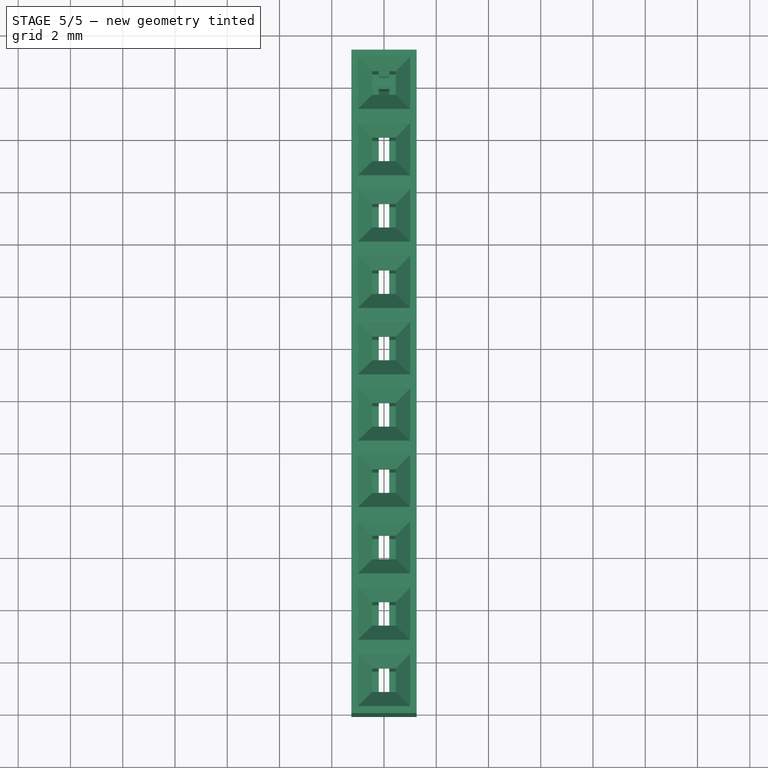
[diagram: stage 5 of 5 — top view after this stage's code; geometry added in this stage tinted green]
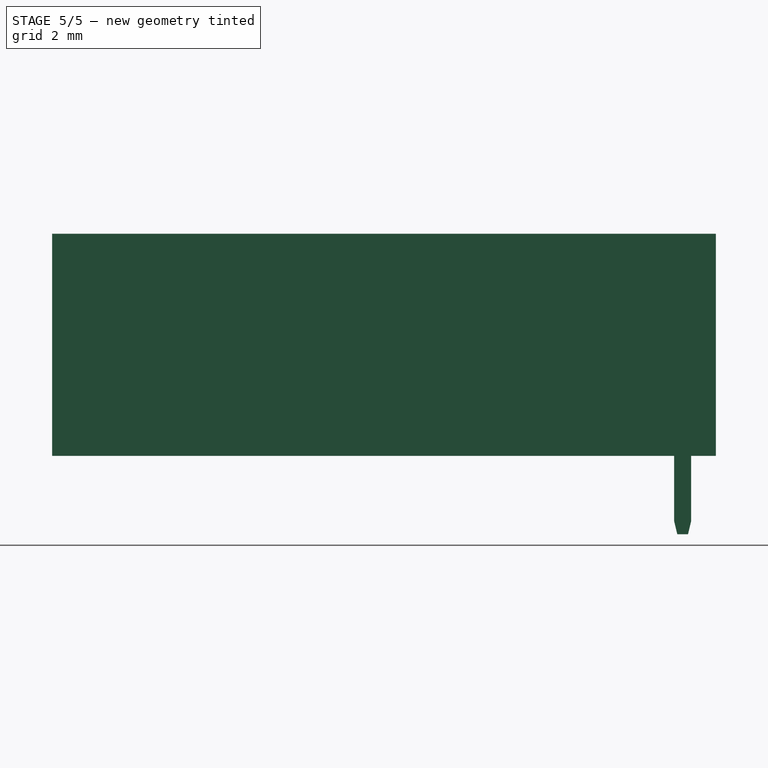
[diagram: stage 5 of 5 — right view after this stage's code; geometry added in this stage tinted green]
FEATURE [PartDesign::Pad] Pad001
  Direction = (1,-2e-16,3e-16)
  Length = 0.4
  Length2 = 10
  Midplane = true
  Placement = pos=(0,0,0) rot=(0.57735,0.57735,0.57735;2.0944rad)
  Profile = -> Sketch001
  ReferenceAxis = -> Sketch001 [N_Axis]
  Type = 0
FEATURE [PartDesign::Mirrored] Mirrored
  BaseFeature = -> Pad001
  MirrorPlane = -> Sketch001 [V_Axis]
  Originals = -> [Pad001]
  Placement = pos=(0,0,0) rot=(0.57735,0.57735,0.57735;2.0944rad)
  Refine = true
FEATURE [Sketcher::SketchObject] Sketch009
  AttachmentOffset = pos=(0,0,-1.27) rot=(0,0,1;0rad)
  FullyConstrained = true
  MapMode = 5
  Placement = pos=(0,1.27,3e-16) rot=(1,0,0;1.5708rad)
  Support = -> [XZ_Plane003]
  sketch-geometry (10):
    g0: LineSegment StartX=-1.25 StartY=0 StartZ=0 EndX=-0.75 EndY=0 EndZ=0
    g1: LineSegment StartX=1.25 StartY=0 StartZ=0 EndX=1.25 EndY=-0.5 EndZ=0
    g2: LineSegment StartX=1.25 StartY=-0.5 StartZ=0 EndX=-1.25 EndY=-0.5 EndZ=0
    g3: LineSegment StartX=-1.25 StartY=-0.5 StartZ=0 EndX=-1.25 EndY=0 EndZ=0
    g4: ArcOfCircle CenterX=-0.75 CenterY=0.1 CenterZ=0 NormalX=0 NormalY=0 NormalZ=1 AngleXU=0 Radius=0.1 StartAngle=4.71239 EndAngle=6.28319
    g5: ArcOfCircle CenterX=0.75 CenterY=0.1 CenterZ=0 NormalX=0 NormalY=0 NormalZ=1 AngleXU=0 Radius=0.1 StartAngle=3.14159 EndAngle=4.71239
    g6: LineSegment StartX=0.75 StartY=0 StartZ=0 EndX=1.25 EndY=0 EndZ=0
    g7: LineSegment StartX=0.65 StartY=0.1 StartZ=0 EndX=0.65 EndY=0.2 EndZ=0
    g8: LineSegment StartX=0.65 StartY=0.2 StartZ=0 EndX=-0.65 EndY=0.2 EndZ=0
    g9: LineSegment StartX=-0.65 StartY=0.2 StartZ=0 EndX=-0.65 EndY=0.1 EndZ=0
  constraints (26):
    c: Coincident(g6,g1)
    c: Coincident(g1,g2)
    c: Coincident(g2,g3)
    c: Coincident(g3,g0)
    c: Horizontal(g0)
    c: Vertical(g1)
    c: Vertical(g3)
    c: PointOnObject(g0,g-1)
    c: Tangent(g6,g5) = -1.5708
    c: Horizontal(g6)
    c: PointOnObject(g1,g-1)
    c: Coincident(g7,g8)
    c: Coincident(g8,g9)
    c: Vertical(g7)
    c: Vertical(g9)
    c: Tangent(g5,g7) = 1.5708
    c: Symmetric(g8,g7,g-2)
    c: Tangent(g9,g4) = 1.5708
    c: Equal(g4,g5)
    c: Radius(g4) = 0.1
    c: DistanceY(g1,g7) = 0.2
    c: DistanceX(g8,g8) = 1.3
    c: DistanceX(g2,g2) = 2.5
    c: Symmetric(g2,g1,g-2)
    c: DistanceY(g1,g7) = 0.7
    c: Tangent(g4,g0) = -1.5708
FEATURE [PartDesign::FeatureBase] Clone
  BaseFeature = -> Body001
FEATURE [PartDesign::Body] Body003
  BaseFeature = -> Body001
  Group = -> [Clone]
  Origin = -> Origin004
  Placement = pos=(0,-2.54,0) rot=(0,0,1;0rad)
  Tip = -> Clone
FEATURE [PartDesign::FeatureBase] Clone001
  BaseFeature = -> Body001
FEATURE [PartDesign::Body] Body004
  BaseFeature = -> Body001
  Group = -> [Clone001]
  Origin = -> Origin005
  Placement = pos=(0,-5.08,0) rot=(0,0,1;0rad)
  Tip = -> Clone001
FEATURE [PartDesign::FeatureBase] Clone002
  BaseFeature = -> Body001
FEATURE [PartDesign::Body] Body005
  BaseFeature = -> Body001
  Group = -> [Clone002]
  Origin = -> Origin006
  Placement = pos=(0,-7.62,0) rot=(0,0,1;0rad)
  Tip = -> Clone002
FEATURE [PartDesign::FeatureBase] Clone003
  BaseFeature = -> Body001
FEATURE [PartDesign::Body] Body006
  BaseFeature = -> Body001
  Group = -> [Clone003]
  Origin = -> Origin007
  Placement = pos=(0,-10.16,0) rot=(0,0,1;0rad)
  Tip = -> Clone003
FEATURE [PartDesign::FeatureBase] Clone004
  BaseFeature = -> Body001
FEATURE [PartDesign::Body] Body007
  BaseFeature = -> Body001
  Group = -> [Clone004]
  Origin = -> Origin008
  Placement = pos=(0,-12.7,0) rot=(0,0,1;0rad)
  Tip = -> Clone004
FEATURE [PartDesign::FeatureBase] Clone005
  BaseFeature = -> Body001
FEATURE [PartDesign::Body] Body008
  BaseFeature = -> Body001
  Group = -> [Clone005]
  Origin = -> Origin009
  Placement = pos=(0,-15.24,0) rot=(0,0,1;0rad)
  Tip = -> Clone005
FEATURE [PartDesign::FeatureBase] Clone006
  BaseFeature = -> Body001
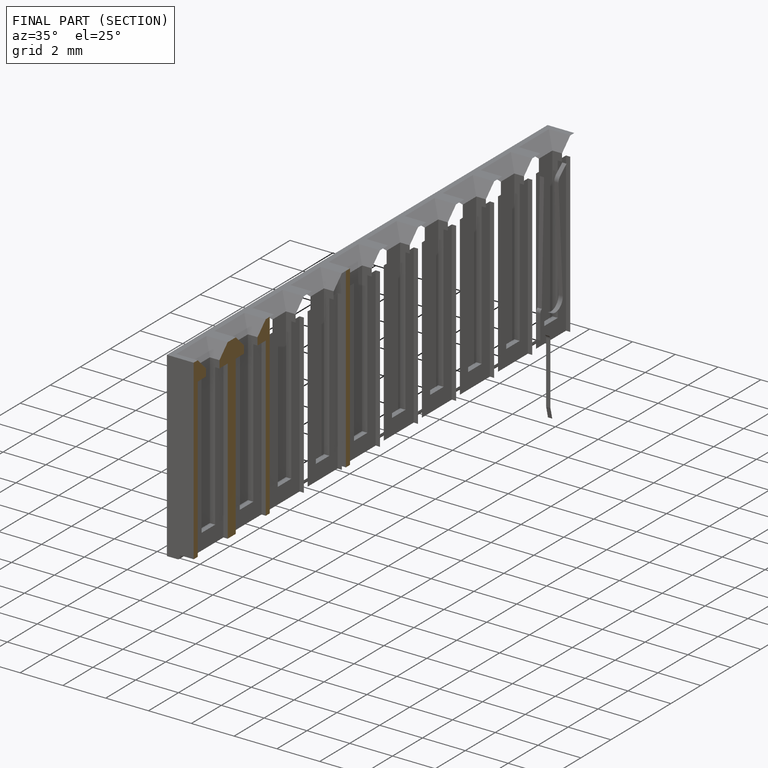
[diagram: finished part — half-section view (interior)]
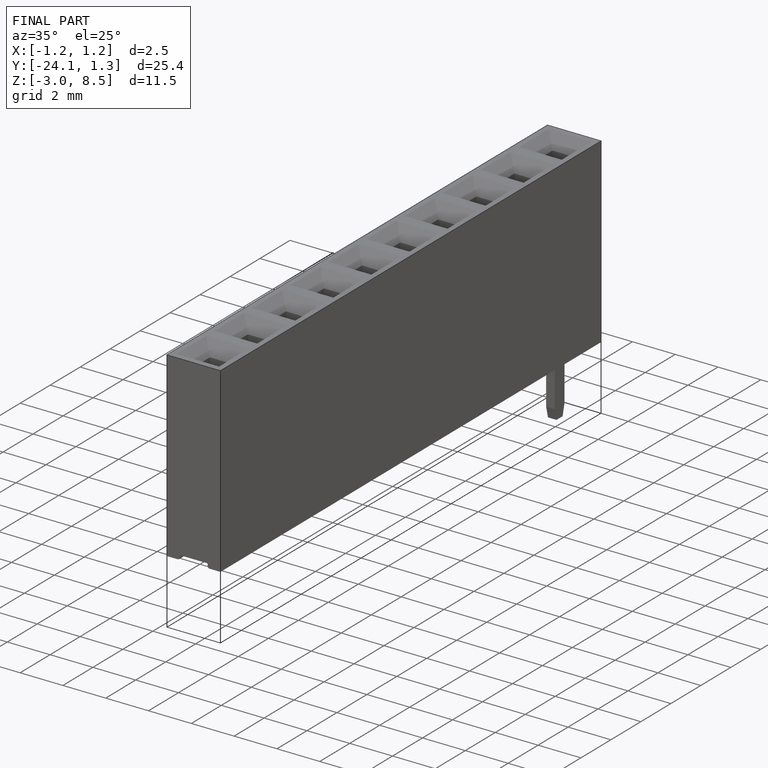
[diagram: finished part — iso view with bounding-box wireframe]
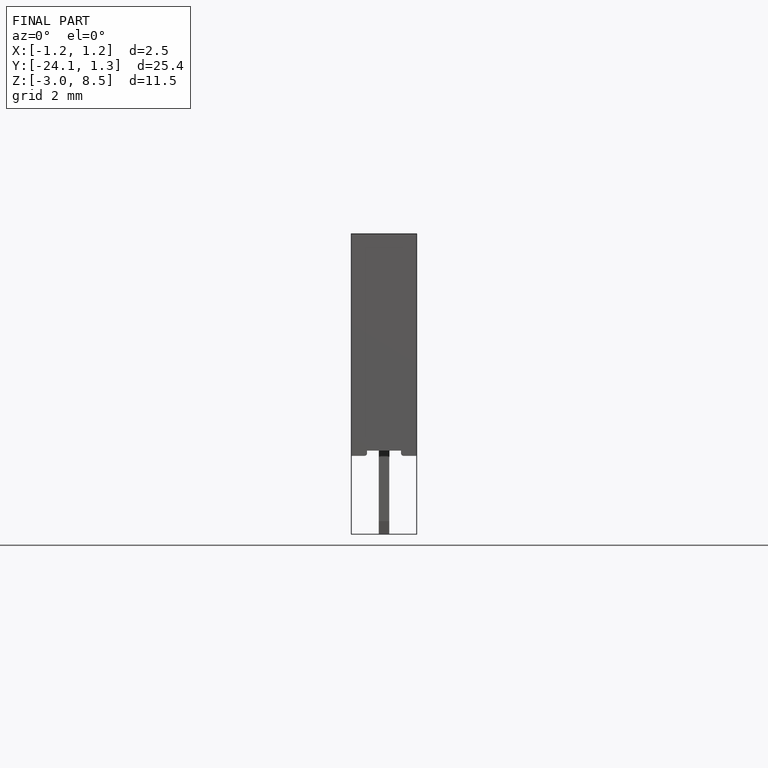
[diagram: finished part — front view with bounding-box wireframe]
